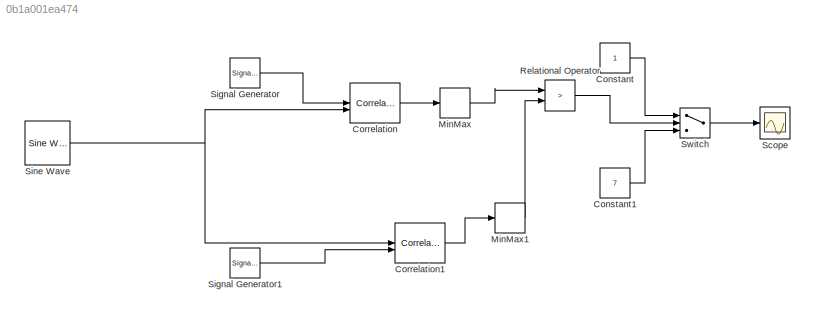
MODEL slx_0b1a001ea474
KIND model
CONFIG AbsTol = auto
CONFIG EnableMultiTasking = off
CONFIG FixedStep = auto
CONFIG MaxStep = auto
CONFIG MinStep = auto
CONFIG PreLoadFcn = load dspafxr;
CONFIG RelTol = 1e-3
CONFIG SampleTimeConstraint = Unconstrained
CONFIG SolverName = FixedStepDiscrete
CONFIG StartTime = 0.0
CONFIG StopTime = 0.55
BLOCK [Constant] Constant
BLOCK [Constant] Constant1
  Value = 7
BLOCK [Reference] Correlation  REF=dspstat3/Correlation
  SourceBlock = dspstat3/Correlation
  SourceType = Correlation
BLOCK [Reference] Correlation1  REF=dspstat3/Correlation
  SourceBlock = dspstat3/Correlation
  SourceType = Correlation
BLOCK [MinMax] MinMax
  Function = max
BLOCK [MinMax] MinMax1
  Function = max
BLOCK [RelationalOperator] Relational Operator
  InputSameDT = off
  Operator = >
  OutDataTypeStr = boolean
BLOCK [Scope] Scope
  Floating = off
  NumInputPorts = 1
  ScopeSpecificationString = Simulink.scopes.TimeScopeBlockCfg('CurrentConfiguration', extmgr.ConfigurationSet(extmgr.Configuration('Core','General UI',true),extmgr.Configuration('Core','Source UI',true),extmgr.Configuration('Sources','WiredSimulink',true),extmgr.Configuration('Visuals','Time Domain',true,'SerializedDisplays',{struct('MinYLimReal','0.25','MaxYLimReal','7.75','YLabelReal','','MinYLimMag','0.25','MaxYLimMag','7...<+1415ch>
BLOCK [SignalGenerator] Signal Generator
  Frequency = 697
BLOCK [SignalGenerator] Signal Generator1
  Frequency = 1477
BLOCK [Reference] Sine Wave  REF=dspsrcs4/Sine Wave
  SourceBlock = dspsrcs4/Sine Wave
  SourceType = Sine Wave
BLOCK [Switch] Switch
  Criteria = u2 ~= 0
  InputSameDT = off
  SaturateOnIntegerOverflow = off
LINE Constant1:1 -> Switch:3
LINE Constant:1 -> Switch:1
LINE Correlation1:1 -> MinMax1:1
LINE Correlation:1 -> MinMax:1
LINE MinMax1:1 -> Relational Operator:2
LINE MinMax:1 -> Relational Operator:1
LINE Relational Operator:1 -> Switch:2
LINE Signal Generator1:1 -> Correlation1:2
LINE Signal Generator:1 -> Correlation:1
NET Sine Wave:1 -> Correlation1:1, Correlation:2
LINE Switch:1 -> Scope:1
note: NET lines group one-source signal fan-out (src -> all destinations, sorted); 1:1 wires keep LINE
